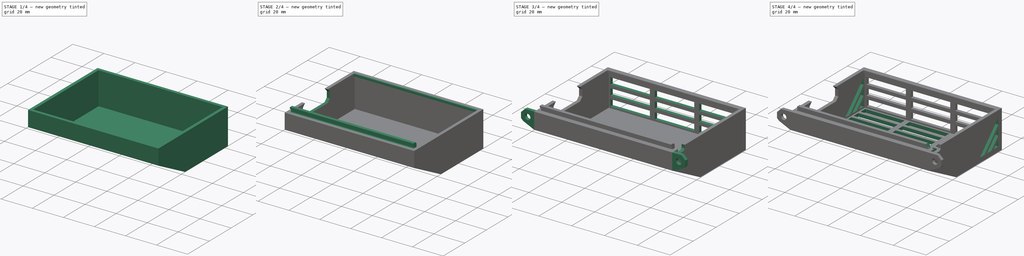
[diagram: build sequence overview — one tinted view per stage of 4, left to right]
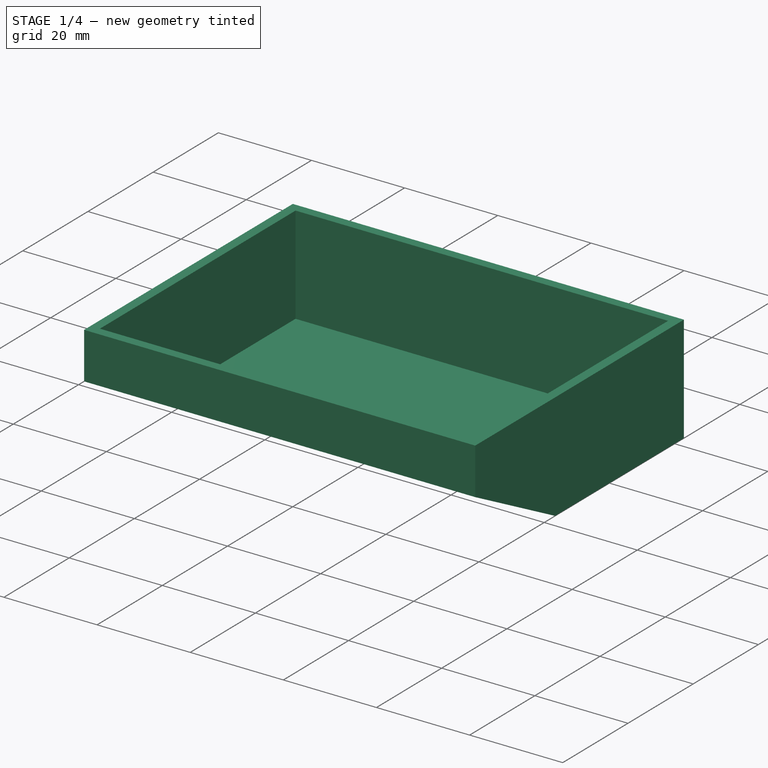
[diagram: stage 1 of 4 — iso view after this stage's code; geometry added in this stage tinted green]
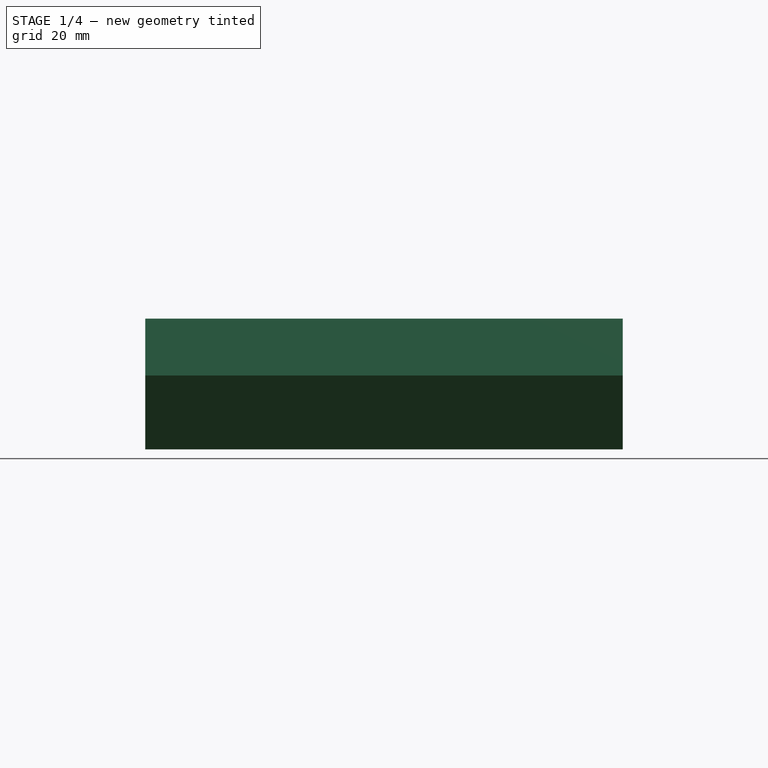
[diagram: stage 1 of 4 — front view after this stage's code; geometry added in this stage tinted green]
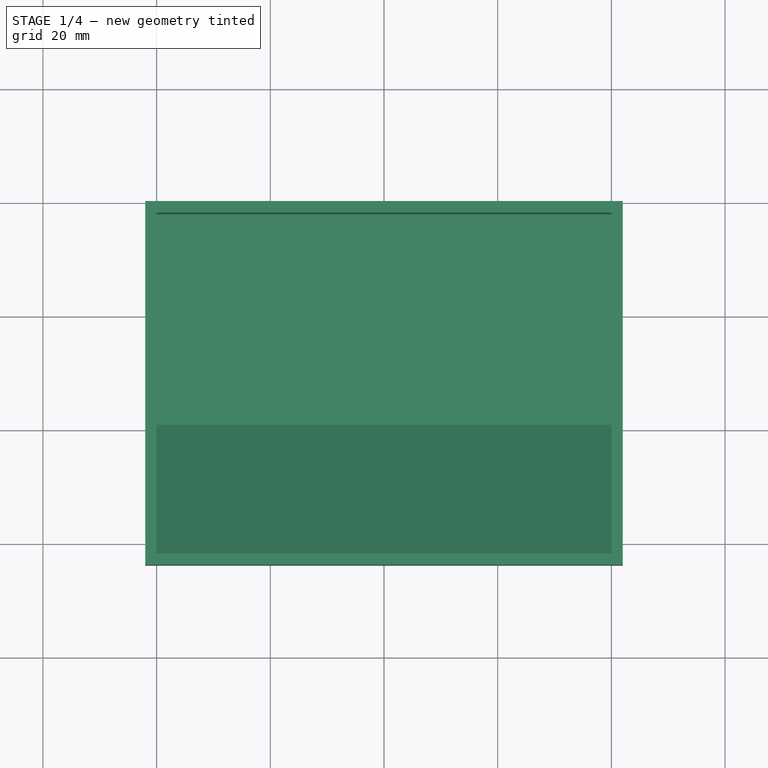
[diagram: stage 1 of 4 — top view after this stage's code; geometry added in this stage tinted green]
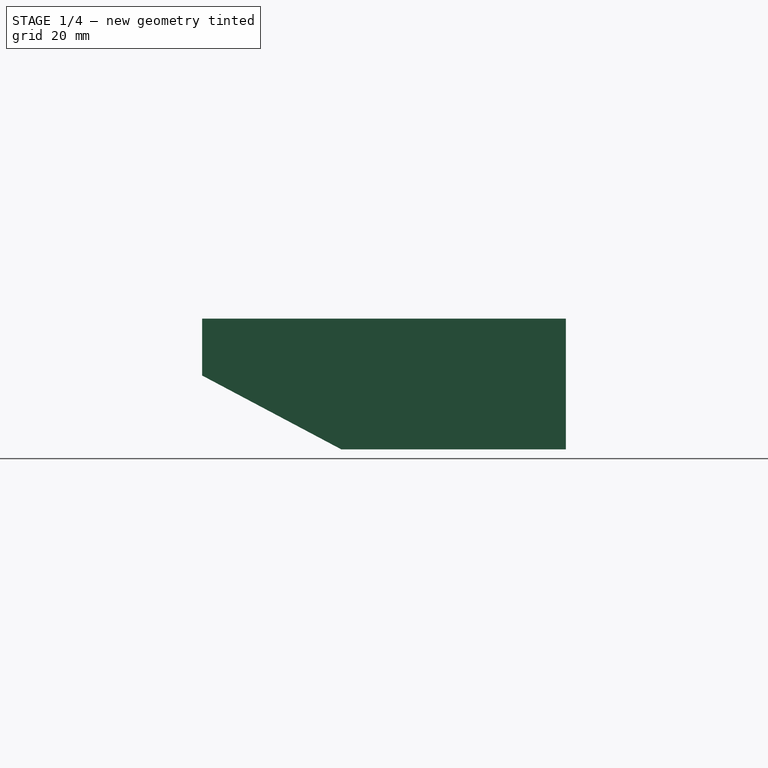
[diagram: stage 1 of 4 — right view after this stage's code; geometry added in this stage tinted green]
FCSTD DOCUMENT  (FreeCAD 0.18.3R)
Label: Controller Case Top
License: All rights reserved
LicenseURL: http://en.wikipedia.org/wiki/All_rights_reserved
objects: Sketcher::SketchObject×12, PartDesign::Pad×6, PartDesign::Pocket×6, PartDesign::Body×1, Spreadsheet::Sheet×1
note: 37 computed .brp shape members not serialized (recipe doc carries the construction recipe); baked Part::Feature solids carry a one-line shape summary decoded from their .brp

FEATURE [Sketcher::SketchObject] Sketch  label="Sketch Top"
  MapMode = 5
  Placement = pos=(0,0,0) rot=(0.57735,0.57735,0.57735;2.0944rad)
  Support = -> [YZ_Plane]
  sketch-geometry (12):
    g0: LineSegment StartX=0 StartY=0 StartZ=0 EndX=0 EndY=23 EndZ=0
    g1: LineSegment StartX=-64 StartY=23 StartZ=0 EndX=-64 EndY=13 EndZ=0
    g2: LineSegment StartX=-64 StartY=13 StartZ=0 EndX=-39.4977 EndY=0 EndZ=0
    g3: LineSegment StartX=-39.4977 StartY=0 StartZ=0 EndX=0 EndY=0 EndZ=0
    g4: LineSegment StartX=0 StartY=23 StartZ=0 EndX=-2 EndY=23 EndZ=0
    g5: LineSegment StartX=-2 StartY=23 StartZ=0 EndX=-2 EndY=2 EndZ=0
    g6: LineSegment StartX=-2 StartY=2 StartZ=0 EndX=-39 EndY=2 EndZ=0
    g7: LineSegment StartX=-39 StartY=2 StartZ=0 EndX=-62 EndY=14.2029 EndZ=0
    g8: LineSegment StartX=-62 StartY=14.2029 StartZ=0 EndX=-62 EndY=23 EndZ=0
    g9: LineSegment StartX=-62 StartY=23 StartZ=0 EndX=-64 EndY=23 EndZ=0
    g10: LineSegment [constr] StartX=-2 StartY=2 StartZ=0 EndX=-2 EndY=0 EndZ=0
    g11: LineSegment [constr] StartX=-62 StartY=14.2029 StartZ=0 EndX=-62.9374 EndY=12.4362 EndZ=0
  constraints (36):
    c: Coincident(g-1,g0)
    c: PointOnObject(g0,g-2)
    c: Vertical(g1)
    c: Coincident(g1,g2)
    c: PointOnObject(g2,g-1)
    c: Coincident(g2,g3)
    c: Coincident(g3,g0)
    c: Horizontal(g1,g0)
    c: Distance(g0,g1) = 64
    c: Distance(g1) = 10
    c: Distance(g0) = 23
    c: Coincident(g0,g4)
    c: Horizontal(g4)
    c: Coincident(g4,g5)
    c: Vertical(g5)
    c: Coincident(g5,g6)
    c: Horizontal(g6)
    c: Coincident(g6,g7)
    c: Coincident(g7,g8)
    c: Vertical(g8)
    c: Coincident(g8,g9)
    c: Coincident(g9,g1)
    c: Horizontal(g9)
    c: Equal(g9,g4)
    c: Parallel(g7,g2)
    c: Coincident(g10,g5)
    c: PointOnObject(g10,g3)
    c: Vertical(g10)
    c: Equal(g10,g4)
    c: Coincident(g11,g7)
    c: PointOnObject(g11,g2)
    c: Perpendicular(g2,g11)
    c: Equal(g11,g10)
    c: Distance(g9) = 2
    c: Distance(g6) = 37
    c: Angle(g6,g7) = 2.65379
FEATURE [PartDesign::Pad] Pad  label="Top"
  Length = 80
  Length2 = 100
  Placement = pos=(0,0,0) rot=(0.57735,0.57735,0.57735;2.0944rad)
  Profile = -> Sketch
  Type = 0
FEATURE [Sketcher::SketchObject] Sketch001  label="Sketch Side Wall Right"
  ExternalGeometry = -> [Pad]
  MapMode = 5
  Placement = pos=(80,-1.76e-14,1.76e-14) rot=(0.57735,0.57735,0.57735;2.0944rad)
  Support = -> [Pad]
  sketch-geometry (5):
    g0: LineSegment StartX=0 StartY=0 StartZ=0 EndX=0 EndY=23 EndZ=0
    g1: LineSegment StartX=0 StartY=23 StartZ=0 EndX=-64 EndY=23 EndZ=0
    g2: LineSegment StartX=-64 StartY=23 StartZ=0 EndX=-64 EndY=13 EndZ=0
    g3: LineSegment StartX=-64 StartY=13 StartZ=0 EndX=-39.4977 EndY=3.55e-14 EndZ=0
    g4: LineSegment StartX=-39.4977 StartY=3.55e-14 StartZ=0 EndX=0 EndY=0 EndZ=0
  constraints (11):
    c: Coincident(g-1,g0)
    c: PointOnObject(g0,g-2)
    c: Coincident(g0,g1)
    c: Coincident(g1,g-3)
    c: Horizontal(g1)
    c: Coincident(g1,g2)
    c: Coincident(g2,g-4)
    c: Coincident(g2,g3)
    c: Coincident(g3,g-4)
    c: Coincident(g3,g4)
    c: Coincident(g4,g0)
FEATURE [PartDesign::Pad] Pad001  label="Side Wall Right"
  BaseFeature = -> Pad
  Length = 2
  Length2 = 100
  Placement = pos=(0,0,0) rot=(0.57735,0.57735,0.57735;2.0944rad)
  Profile = -> Sketch001
  Type = 0
FEATURE [Sketcher::SketchObject] Sketch002  label="Sketch Side Wall Left"
  ExternalGeometry = -> [Pad001]
  MapMode = 5
  Placement = pos=(-1e-16,0,0) rot=(0.57735,0.57735,-0.57735;4.18879rad)
  Support = -> [Pad001]
  sketch-geometry (5):
    g0: LineSegment StartX=0 StartY=0 StartZ=0 EndX=0 EndY=-23 EndZ=0
    g1: LineSegment StartX=0 StartY=-23 StartZ=0 EndX=-64 EndY=-23 EndZ=0
    g2: LineSegment StartX=-64 StartY=-23 StartZ=0 EndX=-64 EndY=-13 EndZ=0
    g3: LineSegment StartX=-64 StartY=-13 StartZ=0 EndX=-39.4977 EndY=-3.73e-14 EndZ=0
    g4: LineSegment StartX=-39.4977 StartY=-3.73e-14 StartZ=0 EndX=0 EndY=0 EndZ=0
  constraints (11):
    c: Coincident(g-1,g0)
    c: PointOnObject(g0,g-2)
    c: Coincident(g0,g1)
    c: Coincident(g1,g-4)
    c: Horizontal(g1)
    c: Coincident(g1,g2)
    c: Coincident(g2,g-3)
    c: Coincident(g2,g3)
    c: Coincident(g3,g-3)
    c: Coincident(g3,g4)
    c: Coincident(g4,g0)
FEATURE [PartDesign::Pad] Pad002  label="Side Wall Left"
  BaseFeature = -> Pad001
  Length = 2
  Length2 = 100
  Placement = pos=(0,0,0) rot=(0.57735,0.57735,0.57735;2.0944rad)
  Profile = -> Sketch002
  Type = 0
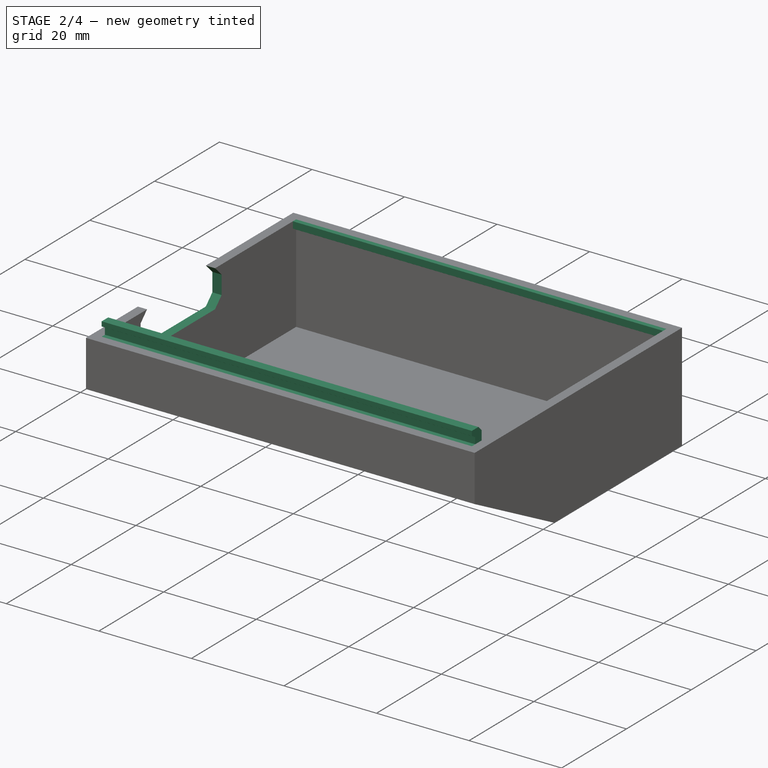
[diagram: stage 2 of 4 — iso view after this stage's code; geometry added in this stage tinted green]
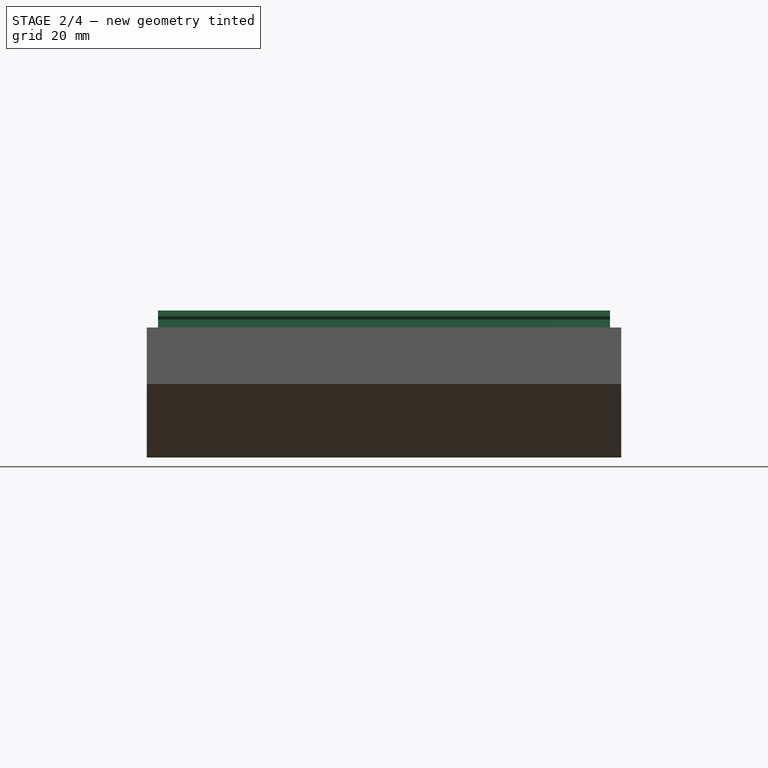
[diagram: stage 2 of 4 — front view after this stage's code; geometry added in this stage tinted green]
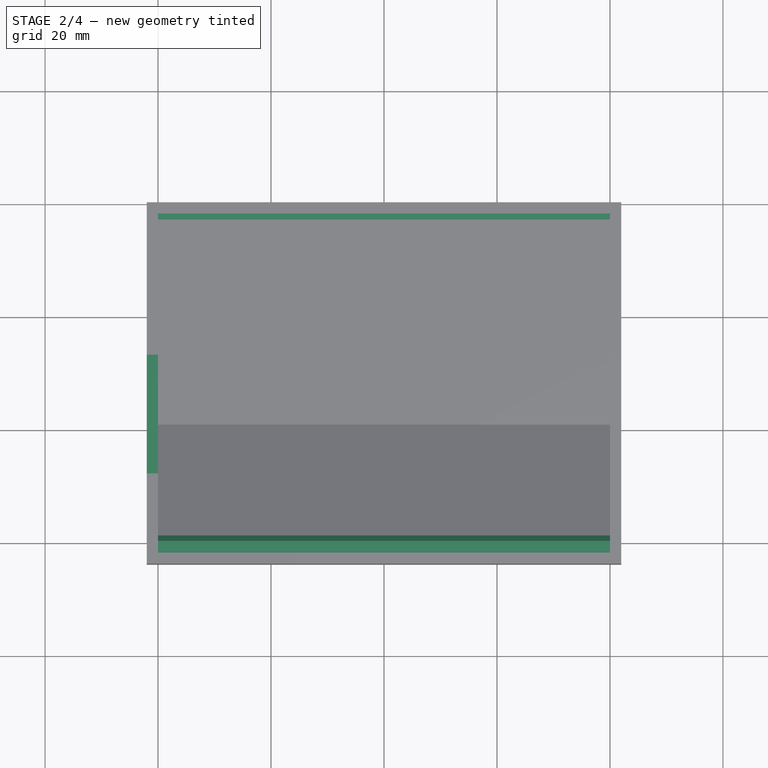
[diagram: stage 2 of 4 — top view after this stage's code; geometry added in this stage tinted green]
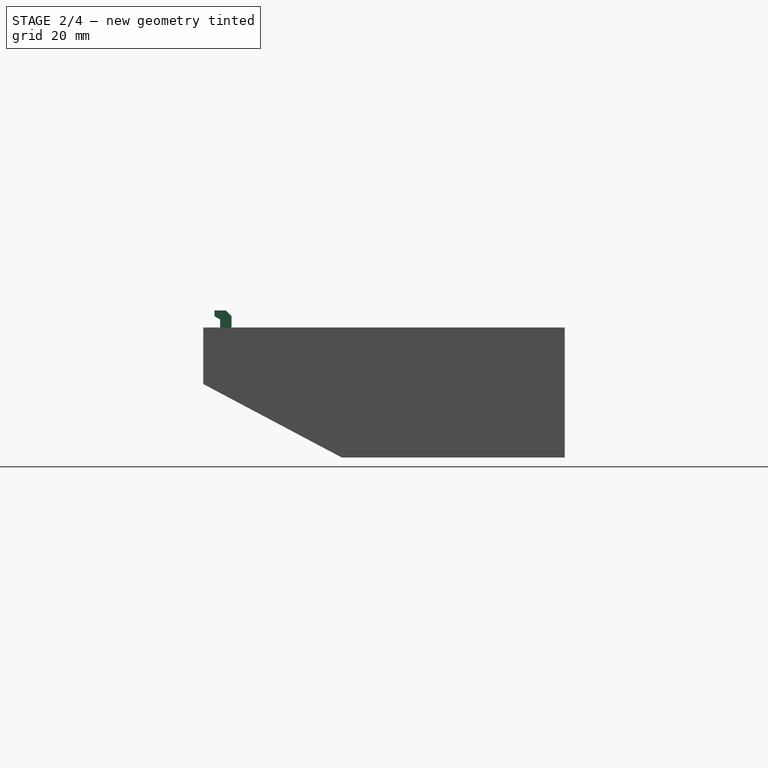
[diagram: stage 2 of 4 — right view after this stage's code; geometry added in this stage tinted green]
FEATURE [Sketcher::SketchObject] Sketch003  label="Sketch Rear Latch"
  ExternalGeometry = -> [Pad002]
  MapMode = 5
  Placement = pos=(9.6e-15,0,0) rot=(0.57735,0.57735,0.57735;2.0944rad)
  Support = -> [Pad002]
  sketch-geometry (4):
    g0: LineSegment StartX=-2 StartY=23 StartZ=0 EndX=-2 EndY=21 EndZ=0
    g1: LineSegment StartX=-2 StartY=21 StartZ=0 EndX=-3 EndY=21.5774 EndZ=0
    g2: LineSegment StartX=-3 StartY=21.5774 StartZ=0 EndX=-3 EndY=23 EndZ=0
    g3: LineSegment StartX=-3 StartY=23 StartZ=0 EndX=-2 EndY=23 EndZ=0
  constraints (11):
    c: Coincident(g-3,g0)
    c: PointOnObject(g0,g-3)
    c: Coincident(g0,g1)
    c: Coincident(g1,g2)
    c: Vertical(g2)
    c: Coincident(g2,g3)
    c: Coincident(g3,g0)
    c: Horizontal(g3)
    c: Angle(g1,g2) = 2.0944
    c: Distance(g3) = 1
    c: Distance(g0) = 2
FEATURE [PartDesign::Pad] Pad003  label="Rear Latch"
  BaseFeature = -> Pad002
  Length = 10
  Length2 = 100
  Placement = pos=(0,0,0) rot=(0.57735,0.57735,0.57735;2.0944rad)
  Profile = -> Sketch003
  Type = 3
  UpToFace = -> Pad002 [Face19]
FEATURE [Sketcher::SketchObject] Sketch004  label="Sketch Front Latch"
  ExternalGeometry = -> [Pad003]
  MapMode = 5
  Placement = pos=(80,-3.12e-14,6.57e-14) rot=(0.57735,0.57735,-0.57735;4.18879rad)
  Support = -> [Pad003]
  sketch-geometry (9):
    g0: LineSegment StartX=-62 StartY=-23 StartZ=0 EndX=-62 EndY=-20 EndZ=0
    g1: LineSegment StartX=-62 StartY=-20 StartZ=0 EndX=-59 EndY=-23 EndZ=0
    g2: LineSegment StartX=-59 StartY=-23 StartZ=0 EndX=-59 EndY=-25 EndZ=0
    g3: LineSegment StartX=-59 StartY=-25 StartZ=0 EndX=-60 EndY=-26 EndZ=0
    g4: LineSegment StartX=-60 StartY=-26 StartZ=0 EndX=-62 EndY=-26 EndZ=0
    g5: LineSegment StartX=-62 StartY=-26 StartZ=0 EndX=-62 EndY=-25 EndZ=0
    g6: LineSegment StartX=-62 StartY=-25 StartZ=0 EndX=-61 EndY=-24.4226 EndZ=0
    g7: LineSegment StartX=-61 StartY=-24.4226 StartZ=0 EndX=-61 EndY=-23 EndZ=0
    g8: LineSegment StartX=-61 StartY=-23 StartZ=0 EndX=-62 EndY=-23 EndZ=0
  constraints (26):
    c: Coincident(g-3,g0)
    c: PointOnObject(g0,g-3)
    c: Coincident(g0,g1)
    c: Coincident(g1,g2)
    c: Vertical(g2)
    c: Coincident(g2,g3)
    c: Coincident(g3,g4)
    c: Horizontal(g4)
    c: Coincident(g4,g5)
    c: Vertical(g5)
    c: Coincident(g5,g6)
    c: Coincident(g6,g7)
    c: Vertical(g7)
    c: Coincident(g7,g8)
    c: Coincident(g8,g0)
    c: Vertical(g5,g0)
    c: Angle(g0,g1) = 0.785398
    c: Angle(g2,g3) = 2.35619
    c: Angle(g7,g6) = 2.0944
    c: Distance(g8) = 1
    c: Distance(g0,g5) = 2
    c: Distance(g5) = 1
    c: Horizontal(g1,g7)
    c: Horizontal(g8)
    c: Distance(g4) = 2
    c: DistanceX(g6,g2) = 2
FEATURE [PartDesign::Pad] Pad004  label="Front Latch"
  BaseFeature = -> Pad003
  Length = 10
  Length2 = 100
  Placement = pos=(0,0,0) rot=(0.57735,0.57735,0.57735;2.0944rad)
  Profile = -> Sketch004
  Type = 3
  UpToFace = -> Pad003 [Face19]
FEATURE [Sketcher::SketchObject] Sketch005  label="Sketch Wiring Cut"
  ExternalGeometry = -> [Pad004]
  MapMode = 5
  Placement = pos=(-2,1.1e-15,-1.3e-15) rot=(0.57735,0.57735,-0.57735;4.18879rad)
  Support = -> [Pad004]
  sketch-geometry (8):
    g0: LineSegment StartX=-27 StartY=-23 StartZ=0 EndX=-48 EndY=-23 EndZ=0
    g1: LineSegment StartX=-48 StartY=-23 StartZ=0 EndX=-50 EndY=-21 EndZ=0
    g2: LineSegment StartX=-50 StartY=-21 StartZ=0 EndX=-50 EndY=-17 EndZ=0
    g3: LineSegment StartX=-50 StartY=-17 StartZ=0 EndX=-48 EndY=-15 EndZ=0
    g4: LineSegment StartX=-48 StartY=-15 StartZ=0 EndX=-27 EndY=-15 EndZ=0
    g5: LineSegment StartX=-27 StartY=-15 StartZ=0 EndX=-25 EndY=-17 EndZ=0
    g6: LineSegment StartX=-25 StartY=-17 StartZ=0 EndX=-25 EndY=-21 EndZ=0
    g7: LineSegment StartX=-25 StartY=-21 StartZ=0 EndX=-27 EndY=-23 EndZ=0
  constraints (24):
    c: PointOnObject(g0,g-3)
    c: PointOnObject(g0,g-3)
    c: Coincident(g0,g1)
    c: Coincident(g1,g2)
    c: Vertical(g2)
    c: Coincident(g2,g3)
    c: Coincident(g3,g4)
    c: Horizontal(g4)
    c: Coincident(g4,g5)
    c: Coincident(g5,g6)
    c: Vertical(g6)
    c: Coincident(g6,g7)
    c: Coincident(g7,g0)
    c: Vertical(g0,g4)
    c: Vertical(g0,g3)
    c: Equal(g2,g6)
    c: Equal(g1,g3)
    c: Equal(g3,g5)
    c: Equal(g5,g7)
    c: Angle(g7,g0) = 2.35619
    c: DistanceY(g0,g3) = 8
    c: DistanceX(g1,g6) = 25
    c: DistanceX(g-3,g1) = 14
    c: DistanceY(g0,g1) = 2
FEATURE [PartDesign::Pocket] Pocket  label="Wiring Cut"
  BaseFeature = -> Pad004
  Length = 5
  Length2 = 100
  Placement = pos=(0,0,0) rot=(0.57735,0.57735,0.57735;2.0944rad)
  Profile = -> Sketch005
  Type = 0
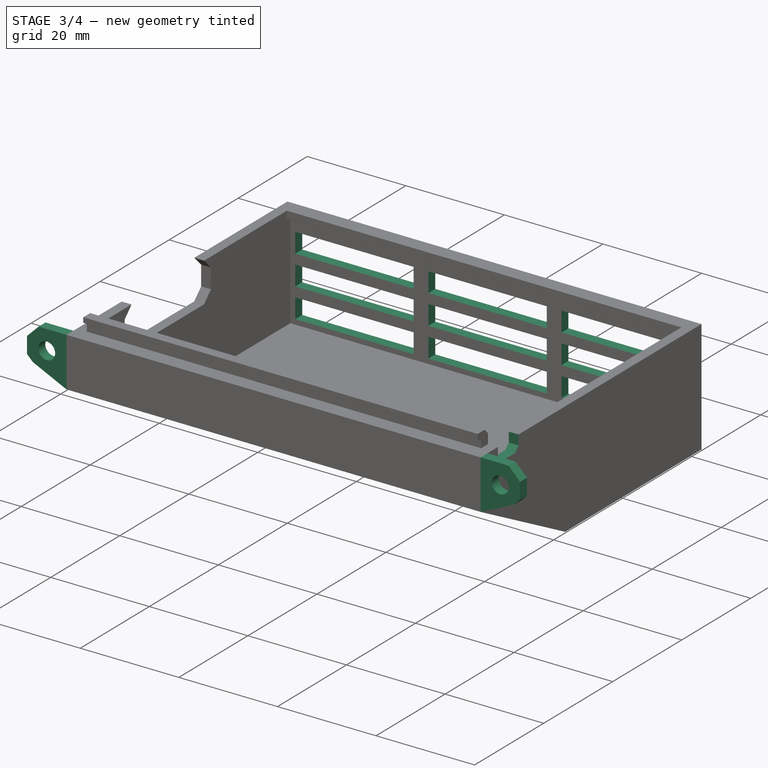
[diagram: stage 3 of 4 — iso view after this stage's code; geometry added in this stage tinted green]
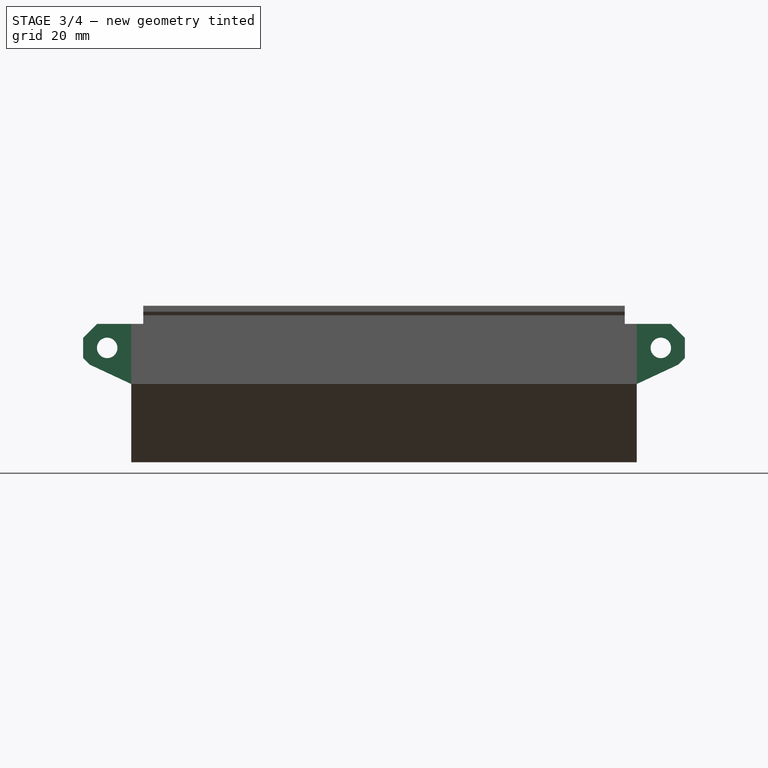
[diagram: stage 3 of 4 — front view after this stage's code; geometry added in this stage tinted green]
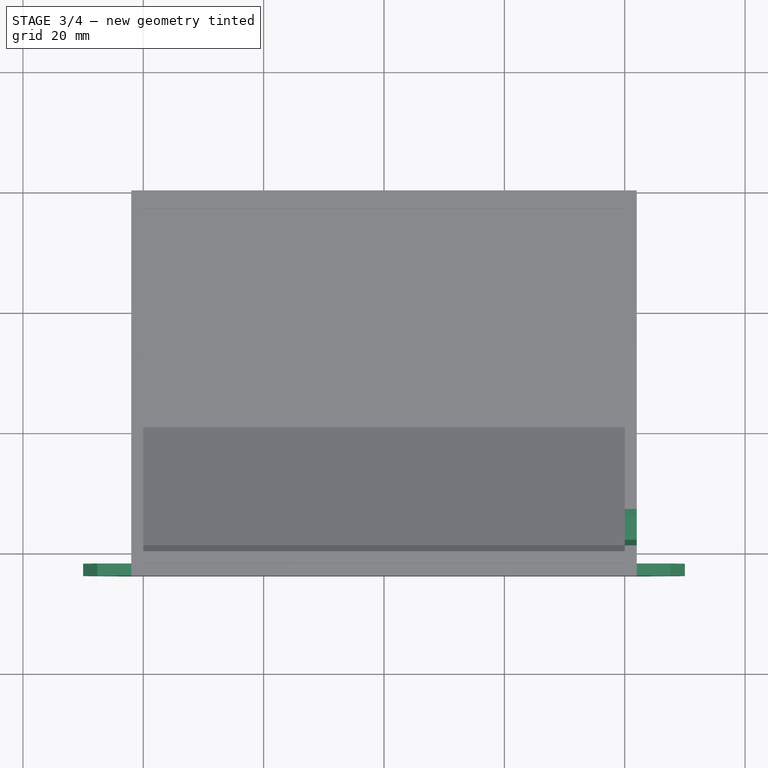
[diagram: stage 3 of 4 — top view after this stage's code; geometry added in this stage tinted green]
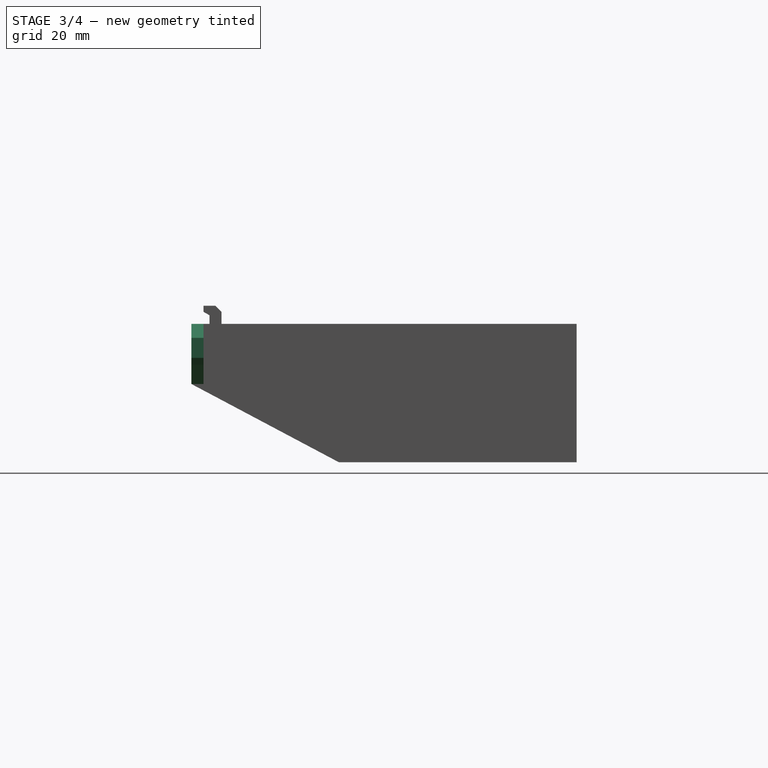
[diagram: stage 3 of 4 — right view after this stage's code; geometry added in this stage tinted green]
FEATURE [Sketcher::SketchObject] Sketch006  label="Sketch Power Wire Cut"
  ExternalGeometry = -> [Pocket]
  MapMode = 5
  Placement = pos=(80,-3.12e-14,8.34e-14) rot=(0.57735,0.57735,-0.57735;4.18879rad)
  Support = -> [Pocket]
  sketch-geometry (6):
    g0: LineSegment StartX=-59 StartY=-23 StartZ=0 EndX=-59 EndY=-21 EndZ=0
    g1: LineSegment StartX=-59 StartY=-21 StartZ=0 EndX=-58 EndY=-20 EndZ=0
    g2: LineSegment StartX=-58 StartY=-20 StartZ=0 EndX=-54 EndY=-20 EndZ=0
    g3: LineSegment StartX=-54 StartY=-20 StartZ=0 EndX=-53 EndY=-21 EndZ=0
    g4: LineSegment StartX=-53 StartY=-21 StartZ=0 EndX=-53 EndY=-23 EndZ=0
    g5: LineSegment StartX=-53 StartY=-23 StartZ=0 EndX=-59 EndY=-23 EndZ=0
  constraints (17):
    c: Coincident(g-3,g0)
    c: Vertical(g0)
    c: Coincident(g0,g1)
    c: Coincident(g1,g2)
    c: Horizontal(g2)
    c: Coincident(g2,g3)
    c: Coincident(g3,g4)
    c: Vertical(g4)
    c: Coincident(g4,g5)
    c: Coincident(g5,g0)
    c: Horizontal(g5)
    c: Equal(g1,g3)
    c: Horizontal(g0,g3)
    c: Angle(g0,g1) = 2.35619
    c: DistanceX(g0,g4) = 6
    c: DistanceY(g4,g2) = 3
    c: Distance(g4) = 2
FEATURE [PartDesign::Pocket] Pocket001  label="Power Wire Cut"
  BaseFeature = -> Pocket
  Length = 5
  Length2 = 100
  Placement = pos=(0,0,0) rot=(0.57735,0.57735,0.57735;2.0944rad)
  Profile = -> Sketch006
  Type = 0
FEATURE [Sketcher::SketchObject] Sketch007  label="Sketch Mount Pads"
  ExternalGeometry = -> [Pocket001]
  MapMode = 5
  Placement = pos=(-5.66e-14,-64,1.41e-14) rot=(-0.57735,-0.57735,0.57735;4.18879rad)
  Support = -> [Pocket001]
  expr: Constraints[27] = Screws.m3tD
  sketch-geometry (19):
    g0: LineSegment StartX=-13 StartY=82 StartZ=0 EndX=-23 EndY=82 EndZ=0
    g1: LineSegment StartX=-23 StartY=82 StartZ=0 EndX=-23 EndY=87.6569 EndZ=0
    g2: LineSegment StartX=-23 StartY=87.6569 StartZ=0 EndX=-20.6569 EndY=90 EndZ=0
    g3: LineSegment StartX=-20.6569 StartY=90 StartZ=0 EndX=-17.3431 EndY=90 EndZ=0
    g4: LineSegment StartX=-23 StartY=-2 StartZ=0 EndX=-13 EndY=-2 EndZ=0
    g5: LineSegment StartX=-17.3431 StartY=-10 StartZ=0 EndX=-20.6569 EndY=-10 EndZ=0
    g6: LineSegment StartX=-20.6569 StartY=-10 StartZ=0 EndX=-23 EndY=-7.65685 EndZ=0
    g7: LineSegment StartX=-23 StartY=-7.65685 StartZ=0 EndX=-23 EndY=-2 EndZ=0
    g8: Circle CenterX=-19 CenterY=86 CenterZ=0 NormalX=0 NormalY=0 NormalZ=1 AngleXU=0 Radius=1.7
    g9: Circle CenterX=-19 CenterY=-6 CenterZ=0 NormalX=0 NormalY=0 NormalZ=1 AngleXU=0 Radius=1.7
    g10: LineSegment [constr] StartX=-19 StartY=86 StartZ=0 EndX=-19 EndY=82 EndZ=0
    g11: LineSegment [constr] StartX=-19 StartY=-6 StartZ=0 EndX=-19 EndY=-2 EndZ=0
    g12: LineSegment [constr] StartX=-19 StartY=86 StartZ=0 EndX=-19 EndY=90 EndZ=0
    g13: LineSegment StartX=-17.3431 StartY=90 StartZ=0 EndX=-16.1951 EndY=88.852 EndZ=0
    g14: LineSegment StartX=-16.1951 StartY=88.852 StartZ=0 EndX=-13 EndY=82 EndZ=0
    g15: LineSegment StartX=-17.3431 StartY=-10 StartZ=0 EndX=-16.1951 EndY=-8.85199 EndZ=0
    g16: LineSegment [constr] StartX=-19 StartY=86 StartZ=0 EndX=-21.8284 EndY=88.8284 EndZ=0
    g17: LineSegment StartX=-16.1951 StartY=-8.85199 StartZ=0 EndX=-13 EndY=-2 EndZ=0
    g18: LineSegment [constr] StartX=-19 StartY=-6 StartZ=0 EndX=-19 EndY=-10 EndZ=0
  constraints (52):
    c: Coincident(g-3,g0)
    c: Coincident(g0,g-3)
    c: Coincident(g0,g1)
    c: Vertical(g1)
    c: Coincident(g1,g2)
    c: Coincident(g2,g3)
    c: Horizontal(g3)
    c: Coincident(g-4,g4)
    c: Horizontal(g5)
    c: Coincident(g5,g6)
    c: Coincident(g6,g7)
    c: Coincident(g7,g4)
    c: Vertical(g7)
    c: Equal(g3,g5)
    c: Angle(g0,g2) = 0.785398
    c: Distance(g3,g0) = 8
    c: Equal(g9,g8)
    c: Vertical(g8,g9)
    c: Coincident(g10,g8)
    c: PointOnObject(g10,g0)
    c: Coincident(g11,g9)
    c: PointOnObject(g11,g4)
    c: Vertical(g11)
    c: Equal(g10,g11)
    c: Coincident(g12,g8)
    c: PointOnObject(g12,g3)
    c: Equal(g12,g10)
    c: Diameter(g8) = 3.4
    c: Vertical(g10)
    c: Equal(g1,g7)
    c: Equal(g6,g2)
    c: Coincident(g13,g3)
    c: Coincident(g14,g13)
    c: Coincident(g14,g0)
    c: Perpendicular(g13,g2)
    c: Angle(g14,g0) = 1.13446
    c: DistanceX(g0,g8) = 4
    c: Coincident(g5,g15)
    c: Coincident(g4,g-4)
    c: Symmetric(g2,g3,g12)
    c: Coincident(g16,g8)
    c: PointOnObject(g16,g2)
    c: Perpendicular(g16,g2)
    c: Equal(g16,g12)
    c: Equal(g15,g13)
    c: Coincident(g17,g15)
    c: Coincident(g17,g4)
    c: Equal(g17,g14)
    c: Coincident(g18,g9)
    c: PointOnObject(g18,g5)
    c: Vertical(g18)
    c: Equal(g18,g11)
FEATURE [PartDesign::Pad] Pad005  label="Mount Pads"
  BaseFeature = -> Pocket001
  Length = 2
  Length2 = 100
  Placement = pos=(0,0,0) rot=(0.57735,0.57735,0.57735;2.0944rad)
  Profile = -> Sketch007
  Reversed = true
  Type = 0
FEATURE [Sketcher::SketchObject] Sketch008  label="Sketch Rear Ventilation Cuts"
  ExternalGeometry = -> [Pad005]
  MapMode = 5
  Placement = pos=(0,0,0) rot=(0.57735,0.57735,0.57735;4.18879rad)
  Support = -> [Pad005]
  sketch-geometry (46):
    g0: LineSegment StartX=3 StartY=79 StartZ=0 EndX=7 EndY=79 EndZ=0
    g1: LineSegment StartX=7 StartY=79 StartZ=0 EndX=7 EndY=55 EndZ=0
    g2: LineSegment StartX=7 StartY=55 StartZ=0 EndX=3 EndY=55 EndZ=0
    g3: LineSegment StartX=3 StartY=55 StartZ=0 EndX=3 EndY=79 EndZ=0
    g4: LineSegment StartX=9 StartY=79 StartZ=0 EndX=13 EndY=79 EndZ=0
    g5: LineSegment StartX=13 StartY=79 StartZ=0 EndX=13 EndY=55 EndZ=0
    g6: LineSegment StartX=13 StartY=55 StartZ=0 EndX=9 EndY=55 EndZ=0
    g7: LineSegment StartX=9 StartY=55 StartZ=0 EndX=9 EndY=79 EndZ=0
    g8: LineSegment StartX=15 StartY=79 StartZ=0 EndX=19 EndY=79 EndZ=0
    g9: LineSegment StartX=19 StartY=79 StartZ=0 EndX=19 EndY=55 EndZ=0
    g10: LineSegment StartX=19 StartY=55 StartZ=0 EndX=15 EndY=55 EndZ=0
    g11: LineSegment StartX=15 StartY=55 StartZ=0 EndX=15 EndY=79 EndZ=0
    g12: LineSegment [constr] StartX=7 StartY=79 StartZ=0 EndX=9 EndY=79 EndZ=0
    g13: LineSegment [constr] StartX=13 StartY=79 StartZ=0 EndX=15 EndY=79 EndZ=0
    g14: LineSegment StartX=3 StartY=1 StartZ=0 EndX=7 EndY=1 EndZ=0
    g15: LineSegment StartX=7 StartY=1 StartZ=0 EndX=7 EndY=25 EndZ=0
    g16: LineSegment StartX=7 StartY=25 StartZ=0 EndX=3 EndY=25 EndZ=0
    g17: LineSegment StartX=3 StartY=25 StartZ=0 EndX=3 EndY=1 EndZ=0
    g18: LineSegment StartX=9 StartY=1 StartZ=0 EndX=13 EndY=1 EndZ=0
    g19: LineSegment StartX=13 StartY=1 StartZ=0 EndX=13 EndY=25 EndZ=0
    g20: LineSegment StartX=13 StartY=25 StartZ=0 EndX=9 EndY=25 EndZ=0
    g21: LineSegment StartX=9 StartY=25 StartZ=0 EndX=9 EndY=1 EndZ=0
    g22: LineSegment StartX=15 StartY=1 StartZ=0 EndX=19 EndY=1 EndZ=0
    g23: LineSegment StartX=19 StartY=1 StartZ=0 EndX=19 EndY=25 EndZ=0
    g24: LineSegment StartX=19 StartY=25 StartZ=0 EndX=15 EndY=25 EndZ=0
    g25: LineSegment StartX=15 StartY=25 StartZ=0 EndX=15 EndY=1 EndZ=0
    g26: LineSegment StartX=3 StartY=52 StartZ=0 EndX=7 EndY=52 EndZ=0
    g27: LineSegment StartX=7 StartY=52 StartZ=0 EndX=7 EndY=28 EndZ=0
    g28: LineSegment StartX=7 StartY=28 StartZ=0 EndX=3 EndY=28 EndZ=0
    g29: LineSegment StartX=3 StartY=28 StartZ=0 EndX=3 EndY=52 EndZ=0
    g30: LineSegment StartX=9 StartY=52 StartZ=0 EndX=13 EndY=52 EndZ=0
    g31: LineSegment StartX=13 StartY=52 StartZ=0 EndX=13 EndY=28 EndZ=0
    g32: LineSegment StartX=13 StartY=28 StartZ=0 EndX=9 EndY=28 EndZ=0
    g33: LineSegment StartX=9 StartY=28 StartZ=0 EndX=9 EndY=52 EndZ=0
    g34: LineSegment StartX=15 StartY=52 StartZ=0 EndX=19 EndY=52 EndZ=0
    g35: LineSegment StartX=19 StartY=52 StartZ=0 EndX=19 EndY=28 EndZ=0
    g36: LineSegment StartX=19 StartY=28 StartZ=0 EndX=15 EndY=28 EndZ=0
    g37: LineSegment StartX=15 StartY=28 StartZ=0 EndX=15 EndY=52 EndZ=0
    g38: LineSegment [constr] StartX=3 StartY=55 StartZ=0 EndX=3 EndY=52 EndZ=0
    g39: LineSegment [constr] StartX=3 StartY=28 StartZ=0 EndX=3 EndY=25 EndZ=0
    g40: LineSegment [constr] StartX=7 StartY=52 StartZ=0 EndX=9 EndY=52 EndZ=0
    g41: LineSegment [constr] StartX=13 StartY=52 StartZ=0 EndX=15 EndY=52 EndZ=0
    g42: LineSegment [constr] StartX=7 StartY=25 StartZ=0 EndX=9 EndY=25 EndZ=0
    g43: LineSegment [constr] StartX=13 StartY=25 StartZ=0 EndX=15 EndY=25 EndZ=0
    g44: LineSegment [constr] StartX=19 StartY=79 StartZ=0 EndX=19 EndY=80 EndZ=0
    g45: LineSegment [constr] StartX=19 StartY=1 StartZ=0 EndX=19 EndY=0 EndZ=0
  constraints (130):
    c: Coincident(g0,g1)
    c: Coincident(g1,g2)
    c: Coincident(g2,g3)
    c: Coincident(g3,g0)
    c: Horizontal(g0)
    c: Horizontal(g2)
    c: Vertical(g1)
    c: Coincident(g4,g5)
    c: Coincident(g5,g6)
    c: Coincident(g6,g7)
    c: Coincident(g7,g4)
    c: Horizontal(g4)
    c: Vertical(g5)
    c: Vertical(g7)
    c: Coincident(g8,g9)
    c: Coincident(g9,g10)
    c: Coincident(g10,g11)
    c: Coincident(g11,g8)
    c: Horizontal(g8)
    c: Horizontal(g10)
    c: Vertical(g9)
    c: Vertical(g11)
    c: Horizontal(g0,g4)
    c: Horizontal(g4,g8)
    c: Horizontal(g1,g5)
    c: Equal(g2,g0)
    c: Equal(g0,g4)
    c: Equal(g4,g8)
    c: Coincident(g12,g0)
    c: Coincident(g12,g4)
    c: Coincident(g13,g4)
    c: Coincident(g13,g8)
    c: Equal(g12,g13)
    c: Distance(g12) = 2
    c: Distance(g0) = 4
    c: DistanceX(g-3,g0) = 3
    c: Coincident(g14,g15)
    c: Coincident(g15,g16)
    c: Coincident(g16,g17)
    c: Coincident(g17,g14)
    c: Horizontal(g14)
    c: Horizontal(g16)
    c: Vertical(g15)
    c: Vertical(g17)
    c: Coincident(g18,g19)
    c: Coincident(g19,g20)
    c: Coincident(g20,g21)
    c: Coincident(g21,g18)
    c: Horizontal(g18)
    c: Horizontal(g20)
    c: Vertical(g19)
    c: Vertical(g21)
    c: Coincident(g22,g23)
    c: Coincident(g23,g24)
    c: Coincident(g24,g25)
    c: Coincident(g25,g22)
    c: Horizontal(g22)
    c: Horizontal(g24)
    c: Vertical(g23)
    c: Vertical(g25)
    c: Coincident(g26,g27)
    c: Coincident(g27,g28)
    c: Coincident(g28,g29)
    c: Coincident(g29,g26)
    c: Horizontal(g26)
    c: Horizontal(g28)
    c: Vertical(g27)
    c: Vertical(g29)
    c: Coincident(g30,g31)
    c: Coincident(g31,g32)
    c: Coincident(g32,g33)
    c: Coincident(g33,g30)
    c: Horizontal(g30)
    c: Horizontal(g32)
    c: Vertical(g31)
    c: Vertical(g33)
    c: Coincident(g34,g35)
    c: Coincident(g35,g36)
    c: Coincident(g36,g37)
    c: Coincident(g37,g34)
    c: Horizontal(g34)
    c: Horizontal(g36)
    c: Vertical(g35)
    c: Vertical(g37)
    c: Equal(g3,g7)
    c: Equal(g7,g11)
    c: Equal(g3,g29)
    c: Equal(g29,g33)
    c: Equal(g33,g37)
    c: Equal(g37,g17)
    c: Equal(g17,g21)
    c: Equal(g21,g25)
    c: Coincident(g38,g2)
    c: Coincident(g38,g26)
    c: Vertical(g38)
    c: Horizontal(g26,g30)
    c: Horizontal(g30,g34)
    c: Horizontal(g15,g19)
    c: Horizontal(g19,g24)
    c: Coincident(g39,g28)
    c: Coincident(g39,g16)
    c: Vertical(g39)
    c: Equal(g39,g38)
    c: Distance(g38) = 3
    c: Equal(g2,g26)
    c: Equal(g26,g30)
    c: Equal(g30,g34)
    c: Equal(g34,g16)
    c: Equal(g16,g20)
    c: Equal(g20,g24)
    c: Coincident(g40,g26)
    c: Coincident(g40,g30)
    c: Coincident(g41,g30)
    c: Coincident(g41,g34)
    c: Coincident(g42,g15)
    c: Coincident(g42,g20)
    c: Coincident(g43,g19)
    c: Coincident(g43,g24)
    c: Equal(g12,g40)
    c: Equal(g40,g41)
    c: Equal(g41,g42)
    c: Equal(g42,g43)
    c: Coincident(g44,g8)
    c: PointOnObject(g44,g-3)
    c: Vertical(g44)
    c: Coincident(g45,g22)
    c: PointOnObject(g45,g-1)
    c: Vertical(g45)
    c: Equal(g45,g44)
    c: Distance(g44) = 1
FEATURE [PartDesign::Pocket] Pocket002  label="Rear Ventilation Cuts"
  BaseFeature = -> Pad005
  Length = 5
  Length2 = 100
  Placement = pos=(0,0,0) rot=(0.57735,0.57735,0.57735;2.0944rad)
  Profile = -> Sketch008
  Type = 0
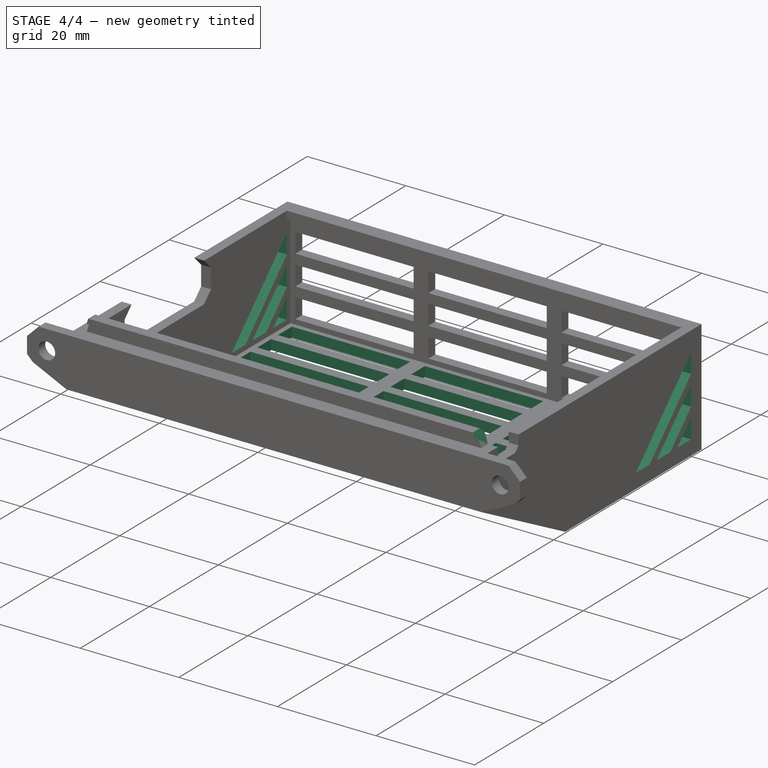
[diagram: stage 4 of 4 — iso view after this stage's code; geometry added in this stage tinted green]
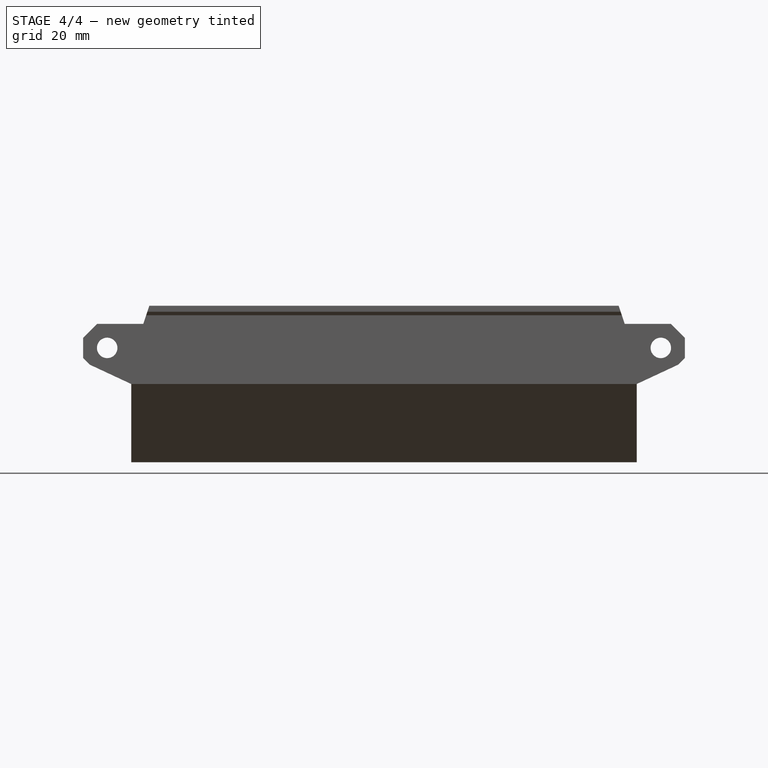
[diagram: stage 4 of 4 — front view after this stage's code; geometry added in this stage tinted green]
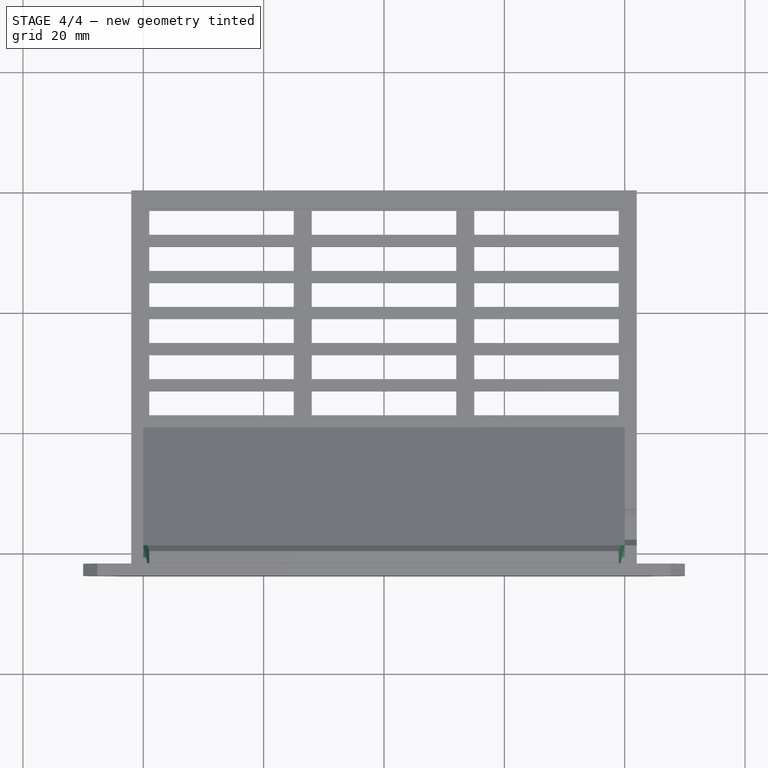
[diagram: stage 4 of 4 — top view after this stage's code; geometry added in this stage tinted green]
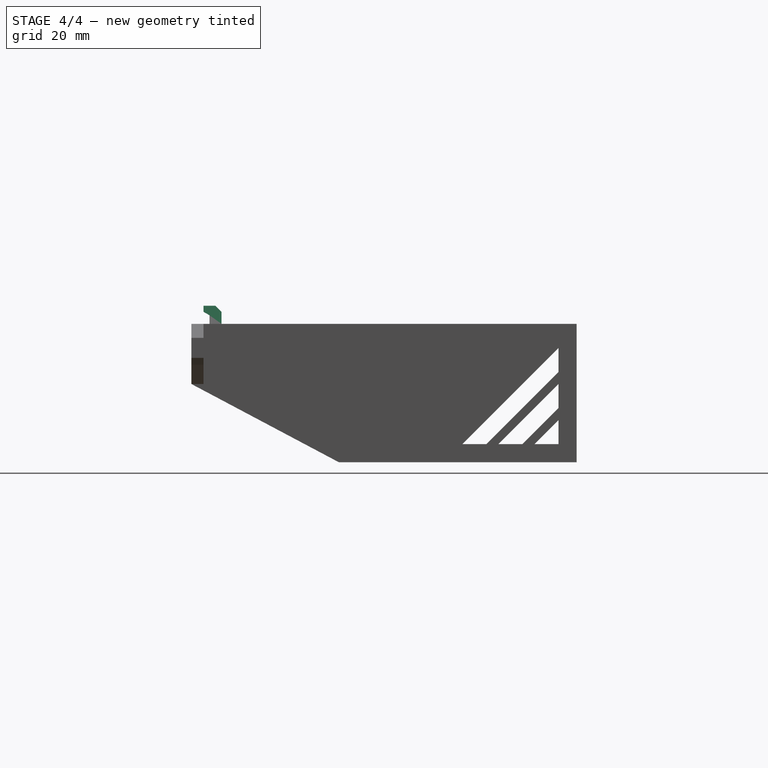
[diagram: stage 4 of 4 — right view after this stage's code; geometry added in this stage tinted green]
FEATURE [Sketcher::SketchObject] Sketch009  label="Sketch Top Ventilation Cuts"
  ExternalGeometry = -> [Pocket002]
  MapMode = 5
  Placement = pos=(0,0,-2.61e-14) rot=(0.707107,0.707107,0;3.14159rad)
  Support = -> [Pocket002]
  sketch-geometry (91):
    g0: LineSegment StartX=-3 StartY=1 StartZ=0 EndX=-7 EndY=1 EndZ=0
    g1: LineSegment StartX=-7 StartY=1 StartZ=0 EndX=-7 EndY=25 EndZ=0
    g2: LineSegment StartX=-7 StartY=25 StartZ=0 EndX=-3 EndY=25 EndZ=0
    g3: LineSegment StartX=-3 StartY=25 StartZ=0 EndX=-3 EndY=1 EndZ=0
    g4: LineSegment StartX=-9 StartY=1 StartZ=0 EndX=-13 EndY=1 EndZ=0
    g5: LineSegment StartX=-13 StartY=1 StartZ=0 EndX=-13 EndY=25 EndZ=0
    g6: LineSegment StartX=-13 StartY=25 StartZ=0 EndX=-9 EndY=25 EndZ=0
    g7: LineSegment StartX=-9 StartY=25 StartZ=0 EndX=-9 EndY=1 EndZ=0
    g8: LineSegment StartX=-15 StartY=1 StartZ=0 EndX=-19 EndY=1 EndZ=0
    g9: LineSegment StartX=-19 StartY=1 StartZ=0 EndX=-19 EndY=25 EndZ=0
    g10: LineSegment StartX=-19 StartY=25 StartZ=0 EndX=-15 EndY=25 EndZ=0
    g11: LineSegment StartX=-15 StartY=25 StartZ=0 EndX=-15 EndY=1 EndZ=0
    g12: LineSegment StartX=-21 StartY=1 StartZ=0 EndX=-25 EndY=1 EndZ=0
    g13: LineSegment StartX=-25 StartY=1 StartZ=0 EndX=-25 EndY=25 EndZ=0
    g14: LineSegment StartX=-25 StartY=25 StartZ=0 EndX=-21 EndY=25 EndZ=0
    g15: LineSegment StartX=-21 StartY=25 StartZ=0 EndX=-21 EndY=1 EndZ=0
    g16: LineSegment StartX=-27 StartY=1 StartZ=0 EndX=-31 EndY=1 EndZ=0
    g17: LineSegment StartX=-31 StartY=1 StartZ=0 EndX=-31 EndY=25 EndZ=0
    g18: LineSegment StartX=-31 StartY=25 StartZ=0 EndX=-27 EndY=25 EndZ=0
    g19: LineSegment StartX=-27 StartY=25 StartZ=0 EndX=-27 EndY=1 EndZ=0
    g20: LineSegment [constr] StartX=-7 StartY=1 StartZ=0 EndX=-9 EndY=1 EndZ=0
    g21: LineSegment [constr] StartX=-13 StartY=1 StartZ=0 EndX=-15 EndY=1 EndZ=0
    g22: LineSegment [constr] StartX=-19 StartY=1 StartZ=0 EndX=-21 EndY=1 EndZ=0
    g23: LineSegment [constr] StartX=-25 StartY=1 StartZ=0 EndX=-27 EndY=1 EndZ=0
    g24: LineSegment StartX=-33 StartY=1 StartZ=0 EndX=-37 EndY=1 EndZ=0
    g25: LineSegment StartX=-37 StartY=1 StartZ=0 EndX=-37 EndY=25 EndZ=0
    g26: LineSegment StartX=-37 StartY=25 StartZ=0 EndX=-33 EndY=25 EndZ=0
    g27: LineSegment StartX=-33 StartY=25 StartZ=0 EndX=-33 EndY=1 EndZ=0
    g28: LineSegment [constr] StartX=-31 StartY=1 StartZ=0 EndX=-33 EndY=1 EndZ=0
    g29: LineSegment StartX=-3 StartY=28 StartZ=0 EndX=-7 EndY=28 EndZ=0
    g30: LineSegment StartX=-7 StartY=28 StartZ=0 EndX=-7 EndY=52 EndZ=0
    g31: LineSegment StartX=-7 StartY=52 StartZ=0 EndX=-3 EndY=52 EndZ=0
    g32: LineSegment StartX=-3 StartY=52 StartZ=0 EndX=-3 EndY=28 EndZ=0
    g33: LineSegment StartX=-9 StartY=28 StartZ=0 EndX=-13 EndY=28 EndZ=0
    g34: LineSegment StartX=-13 StartY=28 StartZ=0 EndX=-13 EndY=52 EndZ=0
    g35: LineSegment StartX=-13 StartY=52 StartZ=0 EndX=-9 EndY=52 EndZ=0
    g36: LineSegment StartX=-9 StartY=52 StartZ=0 EndX=-9 EndY=28 EndZ=0
    g37: LineSegment StartX=-15 StartY=28 StartZ=0 EndX=-19 EndY=28 EndZ=0
    g38: LineSegment StartX=-19 StartY=28 StartZ=0 EndX=-19 EndY=52 EndZ=0
    g39: LineSegment StartX=-19 StartY=52 StartZ=0 EndX=-15 EndY=52 EndZ=0
    g40: LineSegment StartX=-15 StartY=52 StartZ=0 EndX=-15 EndY=28 EndZ=0
    g41: LineSegment StartX=-21 StartY=28 StartZ=0 EndX=-25 EndY=28 EndZ=0
    g42: LineSegment StartX=-25 StartY=28 StartZ=0 EndX=-25 EndY=52 EndZ=0
    g43: LineSegment StartX=-25 StartY=52 StartZ=0 EndX=-21 EndY=52 EndZ=0
    g44: LineSegment StartX=-21 StartY=52 StartZ=0 EndX=-21 EndY=28 EndZ=0
    g45: LineSegment StartX=-27 StartY=28 StartZ=0 EndX=-31 EndY=28 EndZ=0
    g46: LineSegment StartX=-31 StartY=28 StartZ=0 EndX=-31 EndY=52 EndZ=0
    g47: LineSegment StartX=-31 StartY=52 StartZ=0 EndX=-27 EndY=52 EndZ=0
    g48: LineSegment StartX=-27 StartY=52 StartZ=0 EndX=-27 EndY=28 EndZ=0
    g49: LineSegment StartX=-33 StartY=28 StartZ=0 EndX=-37 EndY=28 EndZ=0
    g50: LineSegment StartX=-37 StartY=28 StartZ=0 EndX=-37 EndY=52 EndZ=0
    g51: LineSegment StartX=-37 StartY=52 StartZ=0 EndX=-33 EndY=52 EndZ=0
    g52: LineSegment StartX=-33 StartY=52 StartZ=0 EndX=-33 EndY=28 EndZ=0
    g53: LineSegment [constr] StartX=-7 StartY=28 StartZ=0 EndX=-9 EndY=28 EndZ=0
    g54: LineSegment [constr] StartX=-13 StartY=28 StartZ=0 EndX=-15 EndY=28 EndZ=0
    g55: LineSegment [constr] StartX=-19 StartY=28 StartZ=0 EndX=-21 EndY=28 EndZ=0
    g56: LineSegment [constr] StartX=-25 StartY=28 StartZ=0 EndX=-27 EndY=28 EndZ=0
    g57: LineSegment [constr] StartX=-31 StartY=28 StartZ=0 EndX=-33 EndY=28 EndZ=0
    g58: LineSegment [constr] StartX=-3 StartY=25 StartZ=0 EndX=-3 EndY=28 EndZ=0
    g59: LineSegment StartX=-3 StartY=55 StartZ=0 EndX=-7 EndY=55 EndZ=0
    g60: LineSegment StartX=-7 StartY=55 StartZ=0 EndX=-7 EndY=79 EndZ=0
    g61: LineSegment StartX=-7 StartY=79 StartZ=0 EndX=-3 EndY=79 EndZ=0
    g62: LineSegment StartX=-3 StartY=79 StartZ=0 EndX=-3 EndY=55 EndZ=0
    g63: LineSegment StartX=-9 StartY=55 StartZ=0 EndX=-13 EndY=55 EndZ=0
    g64: LineSegment StartX=-13 StartY=55 StartZ=0 EndX=-13 EndY=79 EndZ=0
    g65: LineSegment StartX=-13 StartY=79 StartZ=0 EndX=-9 EndY=79 EndZ=0
    g66: LineSegment StartX=-9 StartY=79 StartZ=0 EndX=-9 EndY=55 EndZ=0
    g67: LineSegment StartX=-15 StartY=55 StartZ=0 EndX=-19 EndY=55 EndZ=0
    g68: LineSegment StartX=-19 StartY=55 StartZ=0 EndX=-19 EndY=79 EndZ=0
    g69: LineSegment StartX=-19 StartY=79 StartZ=0 EndX=-15 EndY=79 EndZ=0
    g70: LineSegment StartX=-15 StartY=79 StartZ=0 EndX=-15 EndY=55 EndZ=0
    g71: LineSegment StartX=-21 StartY=55 StartZ=0 EndX=-25 EndY=55 EndZ=0
    g72: LineSegment StartX=-25 StartY=55 StartZ=0 EndX=-25 EndY=79 EndZ=0
    g73: LineSegment StartX=-25 StartY=79 StartZ=0 EndX=-21 EndY=79 EndZ=0
    g74: LineSegment StartX=-21 StartY=79 StartZ=0 EndX=-21 EndY=55 EndZ=0
    g75: LineSegment StartX=-27 StartY=55 StartZ=0 EndX=-31 EndY=55 EndZ=0
    g76: LineSegment StartX=-31 StartY=55 StartZ=0 EndX=-31 EndY=79 EndZ=0
    g77: LineSegment StartX=-31 StartY=79 StartZ=0 EndX=-27 EndY=79 EndZ=0
    g78: LineSegment StartX=-27 StartY=79 StartZ=0 EndX=-27 EndY=55 EndZ=0
    g79: LineSegment StartX=-33 StartY=55 StartZ=0 EndX=-37 EndY=55 EndZ=0
    g80: LineSegment StartX=-37 StartY=55 StartZ=0 EndX=-37 EndY=79 EndZ=0
    g81: LineSegment StartX=-37 StartY=79 StartZ=0 EndX=-33 EndY=79 EndZ=0
    g82: LineSegment StartX=-33 StartY=79 StartZ=0 EndX=-33 EndY=55 EndZ=0
    g83: LineSegment [constr] StartX=-3 StartY=52 StartZ=0 EndX=-3 EndY=55 EndZ=0
    g84: LineSegment [constr] StartX=-7 StartY=55 StartZ=0 EndX=-9 EndY=55 EndZ=0
    g85: LineSegment [constr] StartX=-13 StartY=55 StartZ=0 EndX=-15 EndY=55 EndZ=0
    g86: LineSegment [constr] StartX=-19 StartY=55 StartZ=0 EndX=-21 EndY=55 EndZ=0
    g87: LineSegment [constr] StartX=-25 StartY=55 StartZ=0 EndX=-27 EndY=55 EndZ=0
    g88: LineSegment [constr] StartX=-31 StartY=55 StartZ=0 EndX=-33 EndY=55 EndZ=0
    g89: LineSegment [constr] StartX=-3 StartY=1 StartZ=0 EndX=-3 EndY=0 EndZ=0
    g90: LineSegment [constr] StartX=-3 StartY=79 StartZ=0 EndX=-3 EndY=80 EndZ=0
  constraints (256):
    c: Coincident(g0,g1)
    c: Coincident(g1,g2)
    c: Coincident(g2,g3)
    c: Coincident(g3,g0)
    c: Horizontal(g0)
    c: Horizontal(g2)
    c: Vertical(g1)
    c: Vertical(g3)
    c: Coincident(g4,g5)
    c: Coincident(g5,g6)
    c: Coincident(g6,g7)
    c: Coincident(g7,g4)
    c: Horizontal(g4)
    c: Horizontal(g6)
    c: Vertical(g5)
    c: Vertical(g7)
    c: Coincident(g8,g9)
    c: Coincident(g9,g10)
    c: Coincident(g10,g11)
    c: Coincident(g11,g8)
    c: Horizontal(g8)
    c: Horizontal(g10)
    c: Vertical(g9)
    c: Vertical(g11)
    c: Coincident(g12,g13)
    c: Coincident(g13,g14)
    c: Coincident(g14,g15)
    c: Coincident(g15,g12)
    c: Horizontal(g12)
    c: Horizontal(g14)
    c: Vertical(g13)
    c: Vertical(g15)
    c: Coincident(g16,g17)
    c: Coincident(g17,g18)
    c: Coincident(g18,g19)
    c: Coincident(g19,g16)
    c: Horizontal(g16)
    c: Horizontal(g18)
    c: Vertical(g17)
    c: Vertical(g19)
    c: Horizontal(g0,g4)
    c: Horizontal(g4,g8)
    c: Horizontal(g8,g12)
    c: Horizontal(g12,g16)
    c: Equal(g16,g12)
    c: Equal(g12,g8)
    c: Equal(g8,g4)
    c: Equal(g4,g0)
    c: Equal(g3,g7)
    c: Equal(g7,g11)
    c: Equal(g11,g15)
    c: Equal(g15,g19)
    c: Coincident(g20,g0)
    c: Coincident(g20,g4)
    c: Coincident(g21,g4)
    c: Coincident(g21,g8)
    c: Coincident(g22,g8)
    c: Coincident(g22,g12)
    c: Coincident(g23,g12)
    c: Coincident(g23,g16)
    c: Equal(g23,g22)
    c: Equal(g22,g21)
    c: Equal(g21,g20)
    c: Distance(g0) = 4
    c: Distance(g20) = 2
    c: Coincident(g24,g25)
    c: Coincident(g25,g26)
    c: Coincident(g26,g27)
    c: Coincident(g27,g24)
    c: Horizontal(g24)
    c: Horizontal(g26)
    c: Vertical(g25)
    c: Vertical(g27)
    c: Equal(g16,g24)
    c: Equal(g19,g27)
    c: Coincident(g28,g16)
    c: Coincident(g28,g24)
    c: Horizontal(g28)
    c: Equal(g23,g28)
    c: DistanceX(g0,g-1) = 3
    c: Coincident(g29,g30)
    c: Coincident(g30,g31)
    c: Coincident(g31,g32)
    c: Coincident(g32,g29)
    c: Horizontal(g29)
    c: Horizontal(g31)
    c: Vertical(g30)
    c: Vertical(g32)
    c: Coincident(g33,g34)
    c: Coincident(g34,g35)
    c: Coincident(g35,g36)
    c: Coincident(g36,g33)
    c: Horizontal(g33)
    c: Horizontal(g35)
    c: Vertical(g34)
    c: Vertical(g36)
    c: Coincident(g37,g38)
    c: Coincident(g38,g39)
    c: Coincident(g39,g40)
    c: Coincident(g40,g37)
    c: Horizontal(g37)
    c: Horizontal(g39)
    c: Vertical(g38)
    c: Vertical(g40)
    c: Coincident(g41,g42)
    c: Coincident(g42,g43)
    c: Coincident(g43,g44)
    c: Coincident(g44,g41)
    c: Horizontal(g41)
    c: Horizontal(g43)
    c: Vertical(g42)
    c: Vertical(g44)
    c: Coincident(g45,g46)
    c: Coincident(g46,g47)
    c: Coincident(g47,g48)
    c: Coincident(g48,g45)
    c: Horizontal(g45)
    c: Horizontal(g47)
    c: Vertical(g46)
    c: Vertical(g48)
    c: Coincident(g49,g50)
    c: Coincident(g50,g51)
    c: Coincident(g51,g52)
    c: Coincident(g52,g49)
    c: Horizontal(g49)
    c: Horizontal(g51)
    c: Vertical(g50)
    c: Vertical(g52)
    c: Coincident(g53,g29)
    c: Coincident(g53,g33)
    c: Horizontal(g53)
    c: Coincident(g54,g33)
    c: Coincident(g54,g37)
    c: Horizontal(g54)
    c: Coincident(g55,g37)
    c: Coincident(g55,g41)
    c: Horizontal(g55)
    c: Coincident(g56,g41)
    c: Coincident(g56,g45)
    c: Horizontal(g56)
    c: Coincident(g57,g45)
    c: Coincident(g57,g49)
    c: Horizontal(g57)
    c: Equal(g20,g53)
    c: Equal(g53,g54)
    c: Equal(g54,g55)
    c: Equal(g55,g56)
    c: Equal(g56,g57)
    c: Equal(g0,g29)
    c: Equal(g29,g33)
    c: Equal(g33,g37)
    c: Equal(g37,g41)
    c: Equal(g41,g45)
    c: Equal(g45,g49)
    c: Equal(g3,g32)
    c: Equal(g32,g36)
    c: Equal(g36,g40)
    c: Equal(g40,g44)
    c: Equal(g44,g48)
    c: Equal(g48,g52)
    c: Vertical(g2,g29)
    c: Coincident(g58,g2)
    c: Coincident(g58,g29)
    c: Distance(g58) = 3
    c: Coincident(g59,g60)
    c: Coincident(g60,g61)
    c: Coincident(g61,g62)
    c: Coincident(g62,g59)
    c: Horizontal(g59)
    c: Horizontal(g61)
    c: Vertical(g60)
    c: Vertical(g62)
    c: Coincident(g63,g64)
    c: Coincident(g64,g65)
    c: Coincident(g65,g66)
    c: Coincident(g66,g63)
    c: Horizontal(g63)
    c: Horizontal(g65)
    c: Vertical(g64)
    c: Vertical(g66)
    c: Coincident(g67,g68)
    c: Coincident(g68,g69)
    c: Coincident(g69,g70)
    c: Coincident(g70,g67)
    c: Horizontal(g67)
    c: Horizontal(g69)
    c: Vertical(g68)
    c: Vertical(g70)
    c: Coincident(g71,g72)
    c: Coincident(g72,g73)
    c: Coincident(g73,g74)
    c: Coincident(g74,g71)
    c: Horizontal(g71)
    c: Horizontal(g73)
    c: Vertical(g72)
    c: Vertical(g74)
    c: Coincident(g75,g76)
    c: Coincident(g76,g77)
    c: Coincident(g77,g78)
    c: Coincident(g78,g75)
    c: Horizontal(g75)
    c: Horizontal(g77)
    c: Vertical(g76)
    c: Vertical(g78)
    c: Coincident(g79,g80)
    c: Coincident(g80,g81)
    c: Coincident(g81,g82)
    c: Coincident(g82,g79)
    c: Horizontal(g79)
    c: Horizontal(g81)
    c: Vertical(g80)
    c: Vertical(g82)
    c: Coincident(g83,g31)
    c: Coincident(g83,g59)
    c: Vertical(g83)
    c: Coincident(g84,g59)
    c: Coincident(g84,g63)
    c: Horizontal(g84)
    c: Coincident(g85,g63)
    c: Coincident(g85,g67)
    c: Horizontal(g85)
    c: Coincident(g86,g67)
    c: Coincident(g86,g71)
    c: Horizontal(g86)
    c: Coincident(g87,g71)
    c: Coincident(g87,g75)
    c: Horizontal(g87)
    c: Coincident(g88,g75)
    c: Coincident(g88,g79)
    c: Horizontal(g88)
    c: Equal(g58,g83)
    c: Equal(g53,g84)
    c: Equal(g84,g85)
    c: Equal(g85,g86)
    c: Equal(g86,g87)
    c: Equal(g87,g88)
    c: Equal(g59,g63)
    c: Equal(g63,g67)
    c: Equal(g67,g71)
    c: Equal(g71,g75)
    c: Equal(g75,g79)
    c: Equal(g32,g62)
    c: Equal(g62,g66)
    c: Equal(g66,g70)
    c: Equal(g70,g74)
    c: Equal(g74,g78)
    c: Equal(g78,g82)
    c: Equal(g59,g29)
    c: Coincident(g89,g0)
    c: PointOnObject(g89,g-1)
    c: Vertical(g89)
    c: Coincident(g90,g61)
    c: PointOnObject(g90,g-3)
    c: Vertical(g90)
    c: Equal(g90,g89)
    c: Distance(g90) = 1
FEATURE [PartDesign::Pocket] Pocket003  label="Top Ventilation Cuts"
  BaseFeature = -> Pocket002
  Length = 5
  Length2 = 100
  Placement = pos=(0,0,0) rot=(0.57735,0.57735,0.57735;2.0944rad)
  Profile = -> Sketch009
  Type = 0
FEATURE [Sketcher::SketchObject] Sketch010  label="Sketch Sides Ventilation Cuts"
  ExternalGeometry = -> [Pocket003]
  MapMode = 5
  Placement = pos=(82,-3.2e-14,1.219e-13) rot=(0.57735,0.57735,0.57735;2.0944rad)
  Support = -> [Pocket003]
  sketch-geometry (11):
    g0: LineSegment StartX=-3 StartY=3 StartZ=0 EndX=-3 EndY=7 EndZ=0
    g1: LineSegment StartX=-3 StartY=7 StartZ=0 EndX=-7 EndY=3 EndZ=0
    g2: LineSegment StartX=-7 StartY=3 StartZ=0 EndX=-3 EndY=3 EndZ=0
    g3: LineSegment StartX=-9 StartY=3 StartZ=0 EndX=-3 EndY=9 EndZ=0
    g4: LineSegment StartX=-3 StartY=9 StartZ=0 EndX=-3 EndY=13 EndZ=0
    g5: LineSegment StartX=-3 StartY=13 StartZ=0 EndX=-13 EndY=3 EndZ=0
    g6: LineSegment StartX=-13 StartY=3 StartZ=0 EndX=-9 EndY=3 EndZ=0
    g7: LineSegment StartX=-15 StartY=3 StartZ=0 EndX=-3 EndY=15 EndZ=0
    g8: LineSegment StartX=-3 StartY=15 StartZ=0 EndX=-3 EndY=19 EndZ=0
    g9: LineSegment StartX=-3 StartY=19 StartZ=0 EndX=-19 EndY=3 EndZ=0
    g10: LineSegment StartX=-19 StartY=3 StartZ=0 EndX=-15 EndY=3 EndZ=0
  constraints (33):
    c: Vertical(g0)
    c: Coincident(g0,g1)
    c: Coincident(g1,g2)
    c: Coincident(g2,g0)
    c: Horizontal(g2)
    c: Coincident(g3,g4)
    c: Vertical(g4)
    c: Coincident(g4,g5)
    c: Coincident(g5,g6)
    c: Coincident(g6,g3)
    c: Horizontal(g6)
    c: Coincident(g7,g8)
    c: Vertical(g8)
    c: Coincident(g8,g9)
    c: Coincident(g9,g10)
    c: Coincident(g10,g7)
    c: Horizontal(g10)
    c: Horizontal(g8,g-3)
    c: Horizontal(g7,g-3)
    c: Horizontal(g4,g-5)
    c: Horizontal(g3,g-5)
    c: Horizontal(g0,g-4)
    c: Horizontal(g0,g-4)
    c: Horizontal(g-4,g3)
    c: Horizontal(g3,g7)
    c: Vertical(g-6,g9)
    c: Vertical(g-6,g7)
    c: Vertical(g-8,g5)
    c: Vertical(g-8,g3)
    c: Vertical(g-7,g1)
    c: Vertical(g-7,g0)
    c: Vertical(g0,g3)
    c: Vertical(g3,g7)
FEATURE [PartDesign::Pocket] Pocket004  label="Sides Ventilation Cuts"
  BaseFeature = -> Pocket003
  Length = 5
  Length2 = 100
  Placement = pos=(0,0,0) rot=(0.57735,0.57735,0.57735;2.0944rad)
  Profile = -> Sketch010
  Type = 1
FEATURE [Sketcher::SketchObject] Sketch011  label="Sketch Front Latch Chamfer"
  ExternalGeometry = -> [Pocket004]
  MapMode = 5
  Placement = pos=(-5.51e-14,-62,-6.9e-15) rot=(0.57735,0.57735,-0.57735;2.0944rad)
  Support = -> [Pocket004]
  sketch-geometry (6):
    g0: LineSegment StartX=-23 StartY=0 StartZ=0 EndX=-26 EndY=1 EndZ=0
    g1: LineSegment StartX=-26 StartY=1 StartZ=0 EndX=-26 EndY=-4.05e-14 EndZ=0
    g2: LineSegment StartX=-26 StartY=-4.05e-14 StartZ=0 EndX=-23 EndY=0 EndZ=0
    g3: LineSegment StartX=-23 StartY=80 StartZ=0 EndX=-26 EndY=79 EndZ=0
    g4: LineSegment StartX=-26 StartY=79 StartZ=0 EndX=-26 EndY=80 EndZ=0
    g5: LineSegment StartX=-26 StartY=80 StartZ=0 EndX=-23 EndY=80 EndZ=0
  constraints (14):
    c: Coincident(g-5,g0)
    c: Coincident(g0,g1)
    c: Coincident(g1,g-6)
    c: Vertical(g1)
    c: Coincident(g1,g2)
    c: Coincident(g2,g0)
    c: Coincident(g-4,g3)
    c: Coincident(g3,g4)
    c: Coincident(g4,g-3)
    c: Vertical(g4)
    c: Coincident(g4,g5)
    c: Coincident(g5,g3)
    c: Equal(g4,g1)
    c: Distance(g4) = 1
FEATURE [PartDesign::Pocket] Pocket005  label="Front Latch Chamfer"
  BaseFeature = -> Pocket004
  Length = 5
  Length2 = 100
  Placement = pos=(0,0,0) rot=(0.57735,0.57735,0.57735;2.0944rad)
  Profile = -> Sketch011
  Type = 0
FEATURE [PartDesign::Body] Body  label="Controller Case Top"
  Group = -> [Sketch,Pad,Sketch001,Pad001,Sketch002,Pad002,Sketch003,Pad003,Sketch004,Pad004,Sketch005,Pocket,Sketch006,Pocket001,Sketch007,Pad005,Sketch008,Pocket002,Sketch009,Pocket003,Sketch010,Pocket004,Sketch011,Pocket005]
  Origin = -> Origin
  Tip = -> Pocket005
FEATURE [Spreadsheet::Sheet] Spreadsheet  label="Screws"
  cells = A1=Screw Type; B1=Length; D1=Diameter Loose; F1=Diameter Tight; H1=Width Across Flats; A2=M3 Tapping; B2=m3tl; C2(m3tl)==12mm; D2=m3tD; E2(m3tD)==3.4mm; F2=m3td; G2(m3td)==2.8mm; A3=M3x30; B3=m3l; C3(m3l)==30mm; D3=m3D; E3(m3D)==3.2mm; F3=m3d; G3(m3d)==2.8mm; A4=M3 Nut; H4=m3S; I4(m3S)==5.6mm
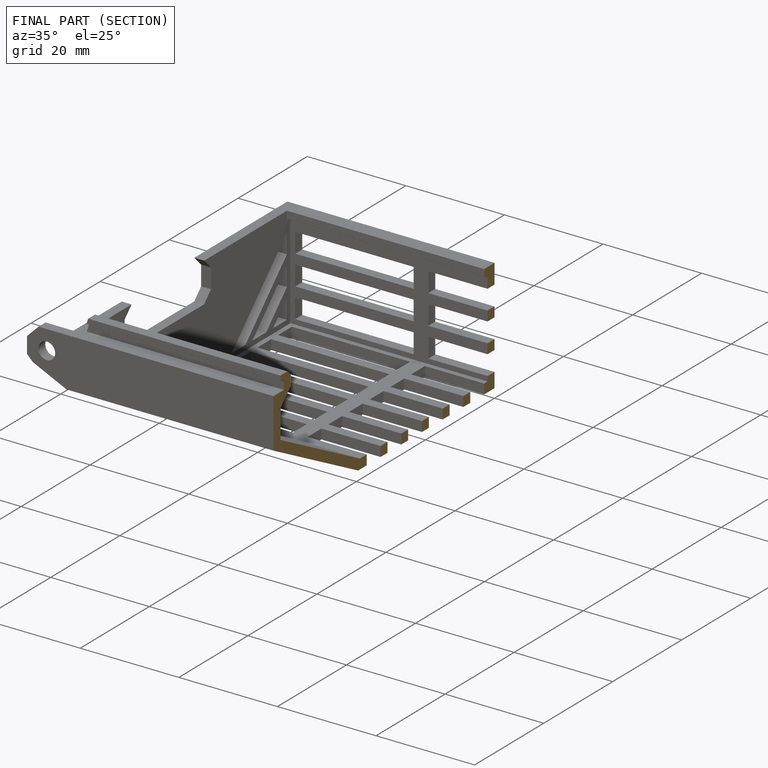
[diagram: finished part — half-section view (interior)]
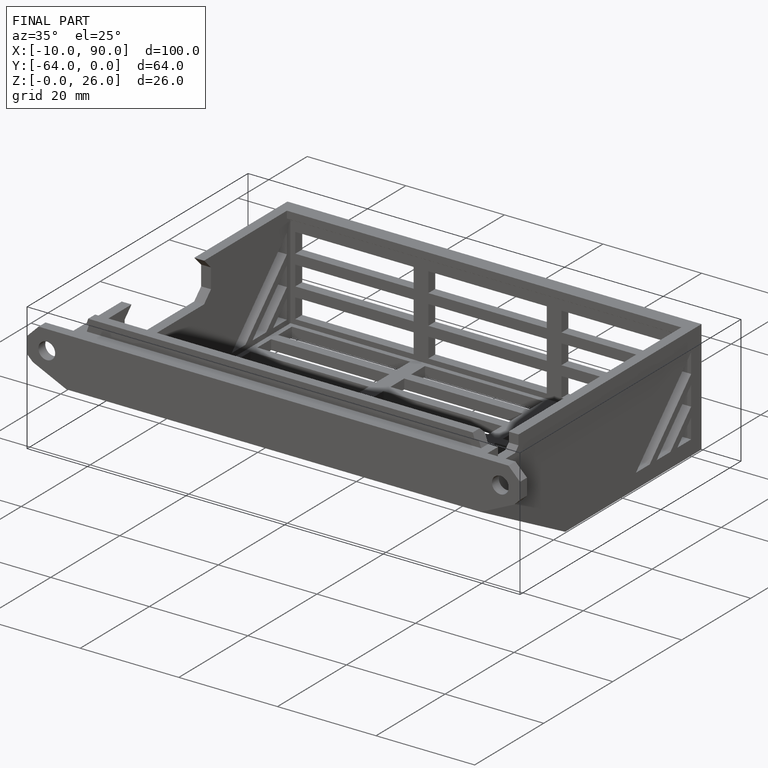
[diagram: finished part — iso view with bounding-box wireframe]
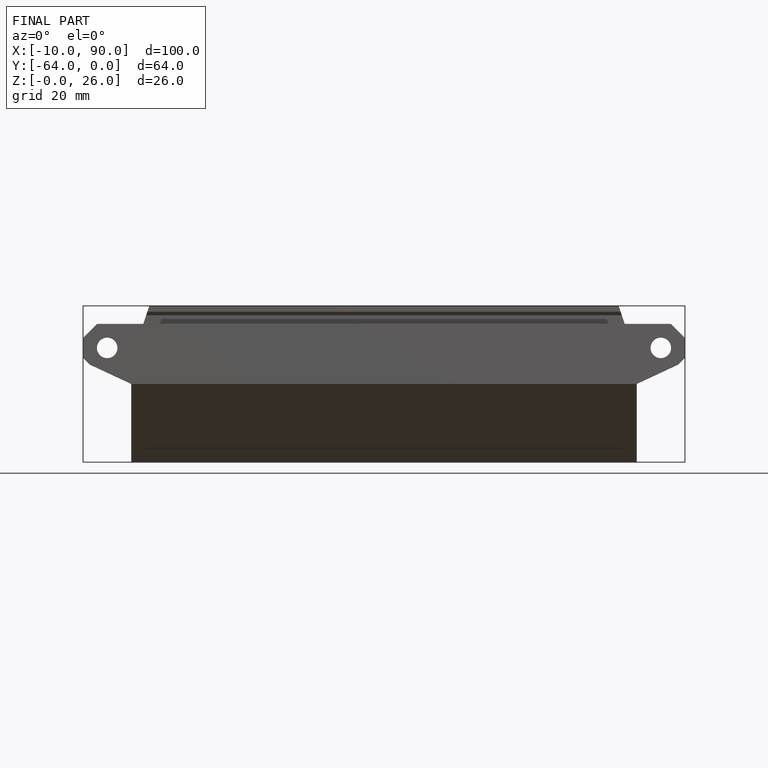
[diagram: finished part — front view with bounding-box wireframe]
